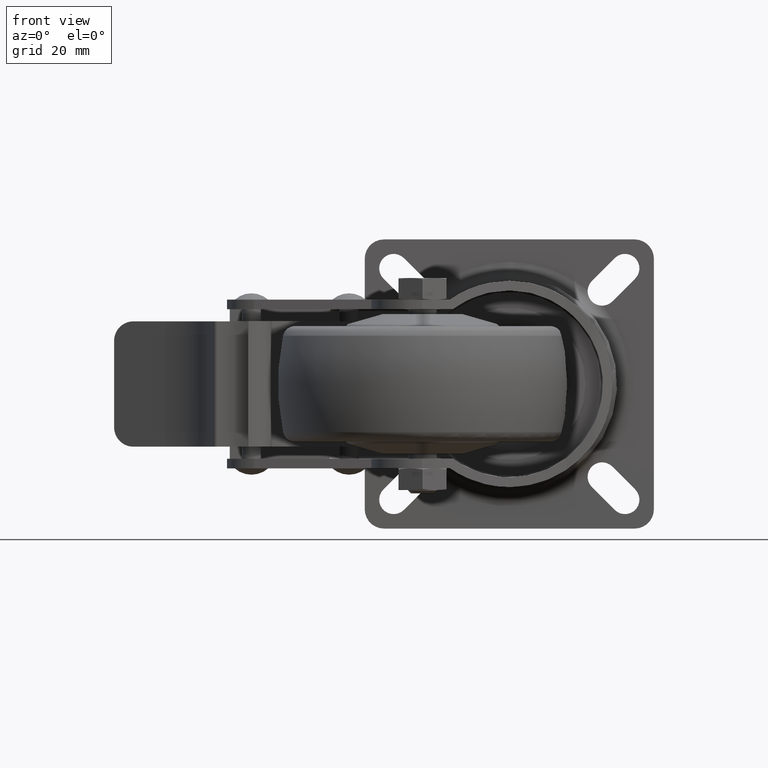
[diagram: clean part render]
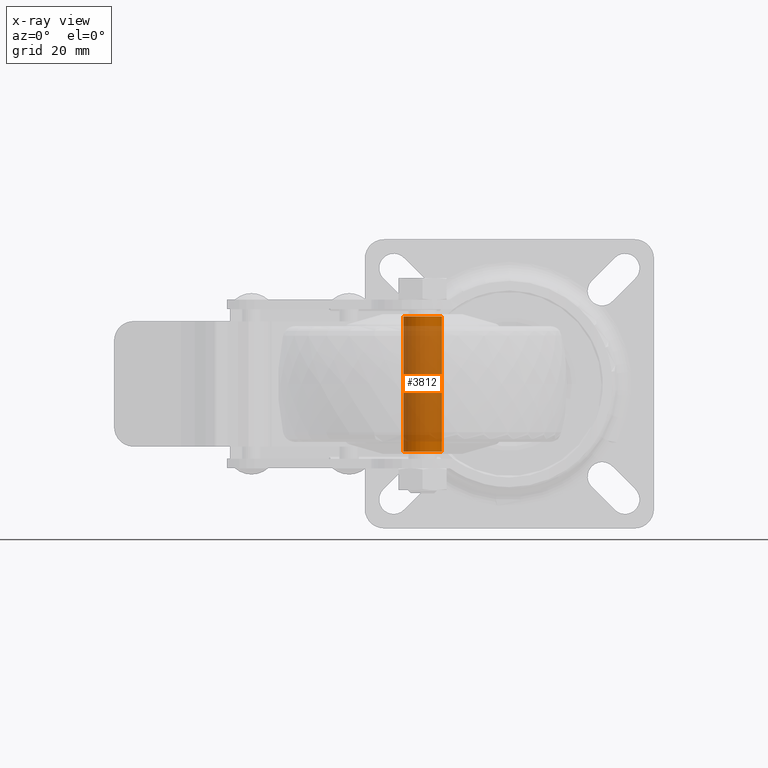
[diagram: x-ray — body ghosted, one internal face saturated and labeled with its STEP entity id]
A machine part, front view, then the same camera in x-ray: the body is ghosted and one INTERNAL B-rep face — a face not visible from any outside direction — is saturated and labeled: STEP entity #3812.
In plain terms, the highlighted cylindrical surface (bore or boss wall) has radius 4 mm, axis along (0, 0, -1).
Its self-contained STEP definition (entity closure, byte-faithful):
#194=LINE('',#6193,#425);
#425=VECTOR('',#4919,4.);
#647=CYLINDRICAL_SURFACE('',#4310,4.);
#892=FACE_OUTER_BOUND('',#1136,.T.);
#1136=EDGE_LOOP('',(#2751,#2752,#2753,#2754));
#1398=CIRCLE('',#4304,4.);
#1401=CIRCLE('',#4309,4.);
#1701=VERTEX_POINT('',#6181);
#1704=VERTEX_POINT('',#6190);
#2097=EDGE_CURVE('',#1701,#1701,#1398,.T.);
#2101=EDGE_CURVE('',#1704,#1704,#1401,.T.);
#2102=EDGE_CURVE('',#1704,#1701,#194,.T.);
#2751=ORIENTED_EDGE('',*,*,#2101,.F.);
#2752=ORIENTED_EDGE('',*,*,#2102,.T.);
#2753=ORIENTED_EDGE('',*,*,#2097,.T.);
#2754=ORIENTED_EDGE('',*,*,#2102,.F.);
#3812=ADVANCED_FACE('',(#892),#647,.T.);
#4304=AXIS2_PLACEMENT_3D('',#6182,#4904,#4905);
#4309=AXIS2_PLACEMENT_3D('',#6191,#4915,#4916);
#4310=AXIS2_PLACEMENT_3D('',#6192,#4917,#4918);
#4904=DIRECTION('center_axis',(1.,0.,0.));
#4905=DIRECTION('ref_axis',(0.,0.,-1.));
#4915=DIRECTION('center_axis',(1.,0.,0.));
#4916=DIRECTION('ref_axis',(0.,0.,-1.));
#4917=DIRECTION('center_axis',(1.,0.,0.));
#4918=DIRECTION('ref_axis',(0.,0.,-1.));
#4919=DIRECTION('',(-1.,0.,0.));
#6181=CARTESIAN_POINT('',(-14.,-4.89858719658941E-16,4.));
#6182=CARTESIAN_POINT('Origin',(-14.,0.,0.));
#6190=CARTESIAN_POINT('',(14.,-4.89858719658941E-16,4.));
#6191=CARTESIAN_POINT('Origin',(14.,0.,0.));
#6192=CARTESIAN_POINT('Origin',(14.,0.,0.));
#6193=CARTESIAN_POINT('',(14.,-4.89858719658941E-16,4.));